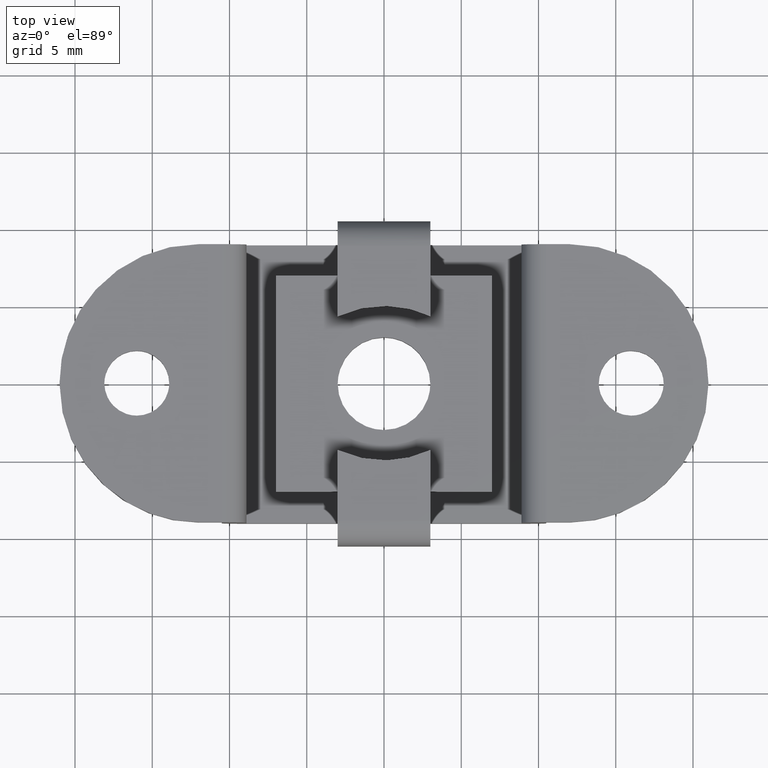
[diagram: clean part render]
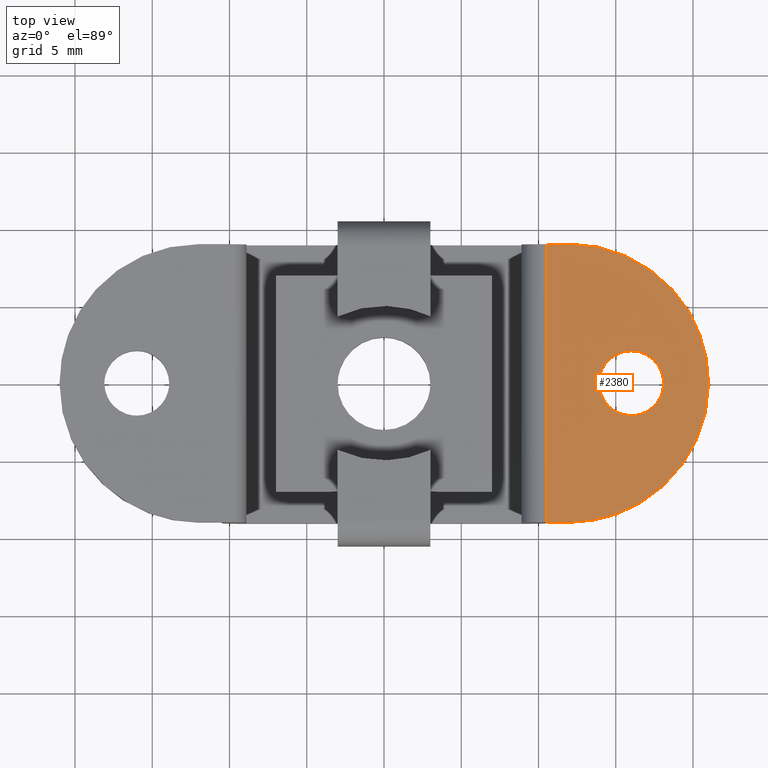
[diagram: same view with one face highlighted and labeled with its STEP entity id]
A machine part, top view. The second image highlights one B-rep face of the part: STEP entity #2380.
In plain terms, the highlighted face is a freeform B-spline surface patch.
Its self-contained STEP definition (entity closure, byte-faithful):
#408=CARTESIAN_POINT('',(14.581260498520830,-1.548282520279563,6.0));
#409=VERTEX_POINT('',#408);
#415=CARTESIAN_POINT('',(15.999999487898320,-2.099999999999938,6.0));
#416=VERTEX_POINT('',#415);
#417=CARTESIAN_POINT('',(15.999999487898320,-2.099999999999938,6.0));
#418=CARTESIAN_POINT('',(15.862076283162880,-2.100017602895612,5.999999999999991));
#419=CARTESIAN_POINT('',(15.586240718931410,-2.072728873233978,6.000000000000012));
#420=CARTESIAN_POINT('',(15.204084069787680,-1.956390947703279,5.999999999999999));
#421=CARTESIAN_POINT('',(14.864763140071670,-1.779289379170065,5.999999999999996));
#422=CARTESIAN_POINT('',(14.670978065494211,-1.630505774760450,5.999999999999981));
#423=CARTESIAN_POINT('',(14.581260498520830,-1.548282520279563,6.0));
#424=B_SPLINE_CURVE_WITH_KNOTS('',3,(#417,#418,#419,#420,#421,#422,#423),.UNSPECIFIED.,.F.,.U.,(4,1,1,1,4),(0.000000011097158,0.413768375171426,0.827530424680338,1.192625660979388,1.557714582713103),.UNSPECIFIED.);
#425=EDGE_CURVE('',#416,#409,#424,.T.);
#427=CARTESIAN_POINT('',(18.100000000000001,0.0,6.0));
#428=VERTEX_POINT('',#427);
#429=CARTESIAN_POINT('',(18.100000000000001,0.0,6.0));
#430=CARTESIAN_POINT('',(18.100086939034931,-0.206173555843778,5.999999999999996));
#431=CARTESIAN_POINT('',(18.045160243486059,-0.575514764453041,6.000000000000007));
#432=CARTESIAN_POINT('',(17.844674499679609,-1.035339620001508,5.999999999999998));
#433=CARTESIAN_POINT('',(17.604147260265460,-1.372399615545883,6.000000000000003));
#434=CARTESIAN_POINT('',(17.289459436833379,-1.679547146720291,6.000000000000012));
#435=CARTESIAN_POINT('',(16.920453760059939,-1.906906748417729,5.999999999999973));
#436=CARTESIAN_POINT('',(16.463850793409652,-2.063940389481433,6.000000000000038));
#437=CARTESIAN_POINT('',(16.171808127432030,-2.100047197243688,5.999999999999981));
#438=CARTESIAN_POINT('',(15.999999487898320,-2.099999999999938,6.0));
#439=B_SPLINE_CURVE_WITH_KNOTS('',3,(#429,#430,#431,#432,#433,#434,#435,#436,#437,#438),.UNSPECIFIED.,.F.,.U.,(4,1,1,1,1,1,1,4),(0.000000046078098,0.618504639973074,1.108160000424336,1.494727046472961,1.855502201907417,2.422477338068444,2.783279105107428,3.298693272671217),.UNSPECIFIED.);
#440=EDGE_CURVE('',#428,#416,#439,.T.);
#442=CARTESIAN_POINT('',(17.418739501479170,1.548282520279557,6.0));
#443=VERTEX_POINT('',#442);
#444=CARTESIAN_POINT('',(17.418739501479170,1.548282520279557,6.0));
#445=CARTESIAN_POINT('',(17.592678430637559,1.389111595608765,5.999999999999996));
#446=CARTESIAN_POINT('',(17.846410872613500,1.062184082451126,6.000000000000013));
#447=CARTESIAN_POINT('',(18.057361464461820,0.516832787514381,5.999999999999973));
#448=CARTESIAN_POINT('',(18.100043193173921,0.172286885963432,6.000000000000020));
#449=CARTESIAN_POINT('',(18.100000000000001,0.0,6.0));
#450=B_SPLINE_CURVE_WITH_KNOTS('',3,(#444,#445,#446,#447,#448,#449),.UNSPECIFIED.,.F.,.U.,(4,1,1,4),(0.000000012917390,0.707277324707163,1.224123831606799,1.740978180980072),.UNSPECIFIED.);
#451=EDGE_CURVE('',#443,#428,#450,.T.);
#544=CARTESIAN_POINT('',(16.000000512101650,2.099999999999938,6.0));
#545=VERTEX_POINT('',#544);
#546=CARTESIAN_POINT('',(16.000000512101650,2.099999999999938,6.0));
#547=CARTESIAN_POINT('',(16.219074598343500,2.100132897645841,6.000000000000004));
#548=CARTESIAN_POINT('',(16.543508016959180,2.048726806813803,5.999999999999977));
#549=CARTESIAN_POINT('',(17.025473671936240,1.851591557745356,6.000000000000020));
#550=CARTESIAN_POINT('',(17.275222566807720,1.679887215735391,5.999999999999996));
#551=CARTESIAN_POINT('',(17.418739501479170,1.548282520279557,6.0));
#552=B_SPLINE_CURVE_WITH_KNOTS('',3,(#546,#547,#548,#549,#550,#551),.UNSPECIFIED.,.F.,.U.,(4,1,1,4),(0.000000011095856,0.657163454463583,0.973571439425768,1.557714582713123),.UNSPECIFIED.);
#553=EDGE_CURVE('',#545,#443,#552,.T.);
#555=CARTESIAN_POINT('',(13.900000000000000,0.0,6.0));
#556=VERTEX_POINT('',#555);
#557=CARTESIAN_POINT('',(13.900000000000000,0.0,6.0));
#558=CARTESIAN_POINT('',(13.899975534737941,0.146034987637824,6.000000000000007));
#559=CARTESIAN_POINT('',(13.926098433175049,0.395142146565860,5.999999999999998));
#560=CARTESIAN_POINT('',(14.034050464736900,0.767419070396775,6.000000000000003));
#561=CARTESIAN_POINT('',(14.215744370824011,1.139784539395887,5.999999999999992));
#562=CARTESIAN_POINT('',(14.469939362493120,1.457364587029954,6.000000000000036));
#563=CARTESIAN_POINT('',(14.817294035167640,1.753321406069142,5.999999999999973));
#564=CARTESIAN_POINT('',(15.189409821139780,1.958150726001400,5.999999999999981));
#565=CARTESIAN_POINT('',(15.622035842221520,2.077802611561608,6.000000000000079));
#566=CARTESIAN_POINT('',(15.879739704256060,2.100008144871423,5.999999999999849));
#567=CARTESIAN_POINT('',(16.000000512101650,2.099999999999938,6.0));
#568=B_SPLINE_CURVE_WITH_KNOTS('',3,(#557,#558,#559,#560,#561,#562,#563,#564,#565,#566,#567),.UNSPECIFIED.,.F.,.U.,(4,1,1,1,1,1,1,1,4),(0.000000046077625,0.438101775746891,0.747359088849217,1.159698045679050,1.675103804851186,1.958593105948169,2.525562595561389,2.937908540679304,3.298693272671196),.UNSPECIFIED.);
#569=EDGE_CURVE('',#556,#545,#568,.T.);
#571=CARTESIAN_POINT('',(14.581260498520830,-1.548282520279563,6.0));
#572=CARTESIAN_POINT('',(14.474278733523040,-1.450283680106820,6.000000000000012));
#573=CARTESIAN_POINT('',(14.304963415943620,-1.259266107076499,5.999999999999983));
#574=CARTESIAN_POINT('',(14.111954685743040,-0.940213241667334,6.000000000000009));
#575=CARTESIAN_POINT('',(13.949041057475210,-0.534936546482762,6.000000000000003));
#576=CARTESIAN_POINT('',(13.899907481662320,-0.208567142881917,5.999999999999995));
#577=CARTESIAN_POINT('',(13.900000000000000,0.0,6.0));
#578=B_SPLINE_CURVE_WITH_KNOTS('',3,(#571,#572,#573,#574,#575,#576,#577),.UNSPECIFIED.,.F.,.U.,(4,1,1,1,4),(0.000000012918733,0.435244635113190,0.761680397375475,1.115310271773558,1.740978180980058),.UNSPECIFIED.);
#579=EDGE_CURVE('',#409,#556,#578,.T.);
#1142=CARTESIAN_POINT('',(10.500000000000000,9.0,6.0));
#1143=VERTEX_POINT('',#1142);
#1164=CARTESIAN_POINT('',(10.500000000000000,-9.0,6.0));
#1165=VERTEX_POINT('',#1164);
#1180=CARTESIAN_POINT('',(10.500000000000000,9.0,6.0));
#1181=CARTESIAN_POINT('',(10.500000000000000,-9.0,6.0));
#1182=QUASI_UNIFORM_CURVE('',1,(#1180,#1181),.UNSPECIFIED.,.F.,.U.);
#1183=EDGE_CURVE('',#1143,#1165,#1182,.T.);
#1872=CARTESIAN_POINT('',(12.0,9.0,6.0));
#1873=VERTEX_POINT('',#1872);
#1874=CARTESIAN_POINT('',(20.999999999999979,-0.000000492002263,5.999999999999999));
#1875=VERTEX_POINT('',#1874);
#1876=CARTESIAN_POINT('',(12.0,9.0,6.0));
#1877=CARTESIAN_POINT('',(12.386559123580160,9.000008877647325,6.000000000000004));
#1878=CARTESIAN_POINT('',(13.233315466013330,8.945378257814307,5.999999999999997));
#1879=CARTESIAN_POINT('',(14.552673809467141,8.670324509156375,5.999999999999991));
#1880=CARTESIAN_POINT('',(15.777685392209010,8.202089490778331,6.000000000000053));
#1881=CARTESIAN_POINT('',(16.745265029250241,7.665617651566062,5.999999999999919));
#1882=CARTESIAN_POINT('',(17.531951090156738,7.118756660277457,6.000000000000051));
#1883=CARTESIAN_POINT('',(18.427939340503190,6.350744385040343,5.999999999999888));
#1884=CARTESIAN_POINT('',(19.366672068470749,5.255739431751869,6.000000000000014));
#1885=CARTESIAN_POINT('',(20.110882340733159,3.978708712704968,6.000000000000002));
#1886=CARTESIAN_POINT('',(20.634251945051190,2.658292581724934,6.000000000000054));
#1887=CARTESIAN_POINT('',(20.933661779649871,1.362175122086249,5.999999999999841));
#1888=CARTESIAN_POINT('',(21.000013492620930,0.423377373264621,6.000000000000187));
#1889=CARTESIAN_POINT('',(20.999999999999979,-0.000000492002263,5.999999999999999));
#1890=B_SPLINE_CURVE_WITH_KNOTS('',3,(#1876,#1877,#1878,#1879,#1880,#1881,#1882,#1883,#1884,#1885,#1886,#1887,#1888,#1889),.UNSPECIFIED.,.F.,.U.,(4,1,1,1,1,1,1,1,1,1,1,4),(0.000000022780315,1.159680174825420,2.540271529334170,4.031309197684729,5.080555616253657,5.853691335475244,6.902931577631438,8.614839774243121,10.161102616878260,11.320798300691839,12.867052614014170,14.137189395567070),.UNSPECIFIED.);
#1891=EDGE_CURVE('',#1873,#1875,#1890,.T.);
#1893=CARTESIAN_POINT('',(12.0,-9.0,6.0));
#1894=VERTEX_POINT('',#1893);
#1895=CARTESIAN_POINT('',(20.999999999999979,-0.000000492002263,5.999999999999999));
#1896=CARTESIAN_POINT('',(21.000017458170330,-0.460192757562808,5.999999999999994));
#1897=CARTESIAN_POINT('',(20.922216221663181,-1.472622714565136,6.000000000000014));
#1898=CARTESIAN_POINT('',(20.576369840477451,-2.853372033155439,5.999999999999961));
#1899=CARTESIAN_POINT('',(20.045680813387062,-4.091254661129163,6.000000000000057));
#1900=CARTESIAN_POINT('',(19.470166318687632,-5.058146512001476,5.999999999999910));
#1901=CARTESIAN_POINT('',(18.749986696335810,-5.992755713522893,6.000000000000147));
#1902=CARTESIAN_POINT('',(17.977416455692971,-6.760610197586144,6.000000000000096));
#1903=CARTESIAN_POINT('',(17.101492625195188,-7.435549433114717,5.999999999999775));
#1904=CARTESIAN_POINT('',(16.236464570711320,-7.964907477823433,6.000000000000633));
#1905=CARTESIAN_POINT('',(15.062773889493410,-8.502585460576816,5.999999999999645));
#1906=CARTESIAN_POINT('',(13.638281368717999,-8.901461753935296,6.000000000000189));
#1907=CARTESIAN_POINT('',(12.533825617188660,-9.000046753430839,5.999999999999946));
#1908=CARTESIAN_POINT('',(12.0,-9.0,6.0));
#1909=B_SPLINE_CURVE_WITH_KNOTS('',3,(#1895,#1896,#1897,#1898,#1899,#1900,#1901,#1902,#1903,#1904,#1905,#1906,#1907,#1908),.UNSPECIFIED.,.F.,.U.,(4,1,1,1,1,1,1,1,1,1,1,4),(0.000000022798286,1.380580917047190,3.037284337878926,4.252204953771917,5.411893728071989,6.405927606251880,7.786493352747754,8.670067688307988,9.719315236568200,10.823786102033040,12.535715583765739,14.137188840964971),.UNSPECIFIED.);
#1910=EDGE_CURVE('',#1875,#1894,#1909,.T.);
#2352=CARTESIAN_POINT('',(9.975525020351036,-9.899099965112507,6.0));
#2353=CARTESIAN_POINT('',(21.524475261280891,-9.899099965112507,6.0));
#2354=CARTESIAN_POINT('',(9.975525020351036,9.899100447910129,6.0));
#2355=CARTESIAN_POINT('',(21.524475261280891,9.899100447910129,6.0));
#2356=B_SPLINE_SURFACE_WITH_KNOTS('',1,1,((#2352,#2354),(#2353,#2355)),.UNSPECIFIED.,.F.,.F.,.U.,(2,2),(2,2),(0.0,11.548950240929861),(0.0,19.798200413022631),.UNSPECIFIED.);
#2357=CARTESIAN_POINT('',(12.0,9.0,6.0));
#2358=CARTESIAN_POINT('',(10.500000000000000,9.0,6.0));
#2359=QUASI_UNIFORM_CURVE('',1,(#2357,#2358),.UNSPECIFIED.,.F.,.U.);
#2360=EDGE_CURVE('',#1873,#1143,#2359,.T.);
#2361=ORIENTED_EDGE('',*,*,#2360,.T.);
#2362=ORIENTED_EDGE('',*,*,#1183,.T.);
#2363=CARTESIAN_POINT('',(12.0,-9.0,6.0));
#2364=CARTESIAN_POINT('',(10.500000000000000,-9.0,6.0));
#2365=QUASI_UNIFORM_CURVE('',1,(#2363,#2364),.UNSPECIFIED.,.F.,.U.);
#2366=EDGE_CURVE('',#1894,#1165,#2365,.T.);
#2367=ORIENTED_EDGE('',*,*,#2366,.F.);
#2368=ORIENTED_EDGE('',*,*,#1910,.F.);
#2369=ORIENTED_EDGE('',*,*,#1891,.F.);
#2370=EDGE_LOOP('',(#2361,#2362,#2367,#2368,#2369));
#2371=FACE_OUTER_BOUND('',#2370,.T.);
#2372=ORIENTED_EDGE('',*,*,#569,.T.);
#2373=ORIENTED_EDGE('',*,*,#553,.T.);
#2374=ORIENTED_EDGE('',*,*,#451,.T.);
#2375=ORIENTED_EDGE('',*,*,#440,.T.);
#2376=ORIENTED_EDGE('',*,*,#425,.T.);
#2377=ORIENTED_EDGE('',*,*,#579,.T.);
#2378=EDGE_LOOP('',(#2372,#2373,#2374,#2375,#2376,#2377));
#2379=FACE_BOUND('',#2378,.T.);
#2380=ADVANCED_FACE('',(#2371,#2379),#2356,.T.);